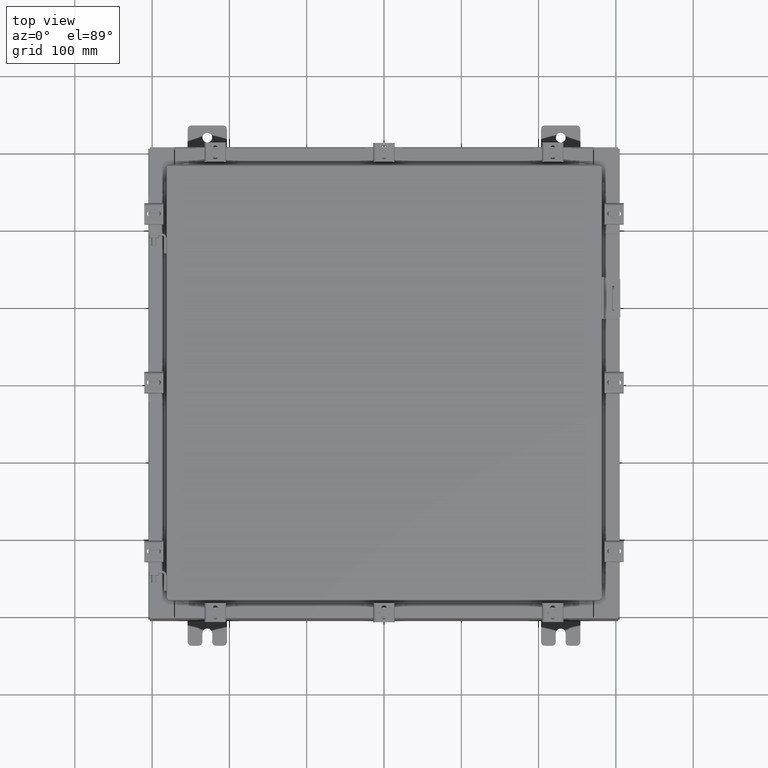
[diagram: clean part render]
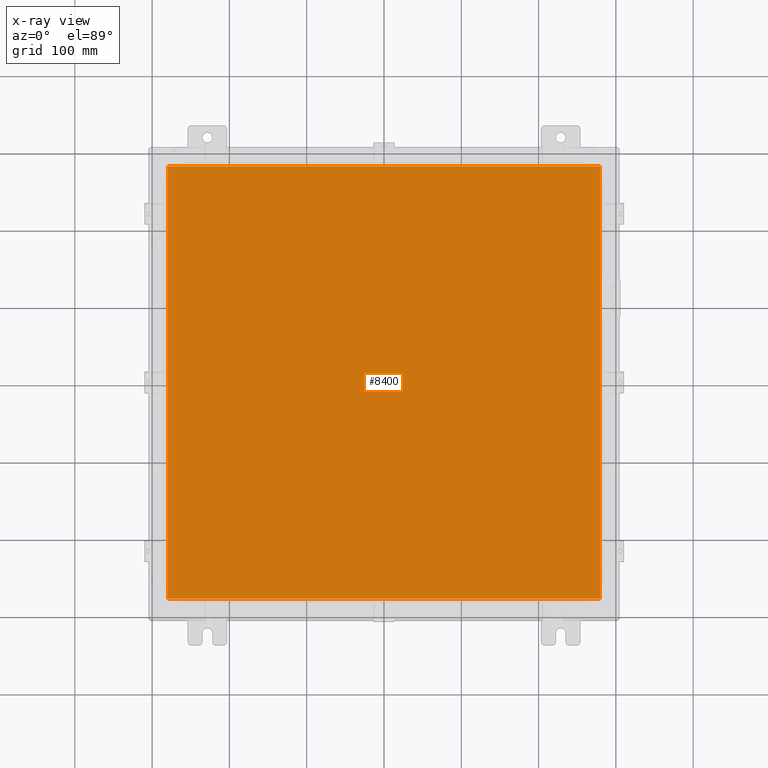
[diagram: x-ray — body ghosted, one internal face saturated and labeled with its STEP entity id]
A machine part, top view, then the same camera in x-ray: the body is ghosted and one INTERNAL B-rep face — a face not visible from any outside direction — is saturated and labeled: STEP entity #8400.
In plain terms, the highlighted planar face has unit normal (0, 0, -1).
Its self-contained STEP definition (entity closure, byte-faithful):
#951 = CARTESIAN_POINT ( 'NONE',  ( -11.00630000000000000, 11.00630000000000000, -0.07470000000000015500 ) ) ;
#3483 = DIRECTION ( 'NONE',  ( 0.0000000000000000000, 1.000000000000000000, 0.0000000000000000000 ) ) ;
#3706 = VERTEX_POINT ( 'NONE', #6241 ) ;
#4782 = FACE_OUTER_BOUND ( 'NONE', #21197, .T. ) ;
#5211 = CARTESIAN_POINT ( 'NONE',  ( 0.0000000000000000000, 0.0000000000000000000, -0.07470000000000015500 ) ) ;
#5630 = CARTESIAN_POINT ( 'NONE',  ( 11.00630000000000000, 11.00630000000000000, -0.07470000000000015500 ) ) ;
#6241 = CARTESIAN_POINT ( 'NONE',  ( 11.00630000000000000, -11.00630000000000000, -0.07470000000000015500 ) ) ;
#6384 = VERTEX_POINT ( 'NONE', #6765 ) ;
#6622 = ORIENTED_EDGE ( 'NONE', *, *, #18986, .F. ) ;
#6692 = ORIENTED_EDGE ( 'NONE', *, *, #7408, .F. ) ;
#6765 = CARTESIAN_POINT ( 'NONE',  ( 11.00630000000000000, 11.00630000000000000, -0.07470000000000015500 ) ) ;
#6769 = VECTOR ( 'NONE', #3483, 39.37007874015748100 ) ;
#6986 = VECTOR ( 'NONE', #20523, 39.37007874015748100 ) ;
#7408 = EDGE_CURVE ( 'NONE', #6384, #12408, #9152, .T. ) ;
#8210 = EDGE_CURVE ( 'NONE', #14272, #3706, #11632, .T. ) ;
#8400 = ADVANCED_FACE ( 'NONE', ( #4782 ), #13969, .T. ) ;
#8740 = DIRECTION ( 'NONE',  ( -1.000000000000000000, 0.0000000000000000000, -0.0000000000000000000 ) ) ;
#9152 = LINE ( 'NONE', #5630, #17427 ) ;
#9785 = CARTESIAN_POINT ( 'NONE',  ( -11.00630000000000000, 11.00630000000000000, -0.07470000000000015500 ) ) ;
#10966 = ORIENTED_EDGE ( 'NONE', *, *, #17957, .F. ) ;
#11362 = ORIENTED_EDGE ( 'NONE', *, *, #8210, .F. ) ;
#11374 = LINE ( 'NONE', #951, #11924 ) ;
#11632 = LINE ( 'NONE', #13523, #6986 ) ;
#11924 = VECTOR ( 'NONE', #14926, 39.37007874015748100 ) ;
#12408 = VERTEX_POINT ( 'NONE', #9785 ) ;
#12896 = AXIS2_PLACEMENT_3D ( 'NONE', #5211, #19227, #8740 ) ;
#13523 = CARTESIAN_POINT ( 'NONE',  ( -11.00630000000000000, -11.00630000000000000, -0.07470000000000015500 ) ) ;
#13969 = PLANE ( 'NONE',  #12896 ) ;
#14272 = VERTEX_POINT ( 'NONE', #21265 ) ;
#14926 = DIRECTION ( 'NONE',  ( 0.0000000000000000000, -1.000000000000000000, 0.0000000000000000000 ) ) ;
#17427 = VECTOR ( 'NONE', #21381, 39.37007874015748100 ) ;
#17957 = EDGE_CURVE ( 'NONE', #3706, #6384, #21254, .T. ) ;
#18986 = EDGE_CURVE ( 'NONE', #12408, #14272, #11374, .T. ) ;
#19227 = DIRECTION ( 'NONE',  ( 0.0000000000000000000, 0.0000000000000000000, -1.000000000000000000 ) ) ;
#20523 = DIRECTION ( 'NONE',  ( 1.000000000000000000, -0.0000000000000000000, -0.0000000000000000000 ) ) ;
#20884 = CARTESIAN_POINT ( 'NONE',  ( 11.00630000000000000, -11.00630000000000000, -0.07470000000000015500 ) ) ;
#21197 = EDGE_LOOP ( 'NONE', ( #10966, #11362, #6622, #6692 ) ) ;
#21254 = LINE ( 'NONE', #20884, #6769 ) ;
#21265 = CARTESIAN_POINT ( 'NONE',  ( -11.00630000000000000, -11.00630000000000000, -0.07470000000000015500 ) ) ;
#21381 = DIRECTION ( 'NONE',  ( -1.000000000000000000, -0.0000000000000000000, -0.0000000000000000000 ) ) ;